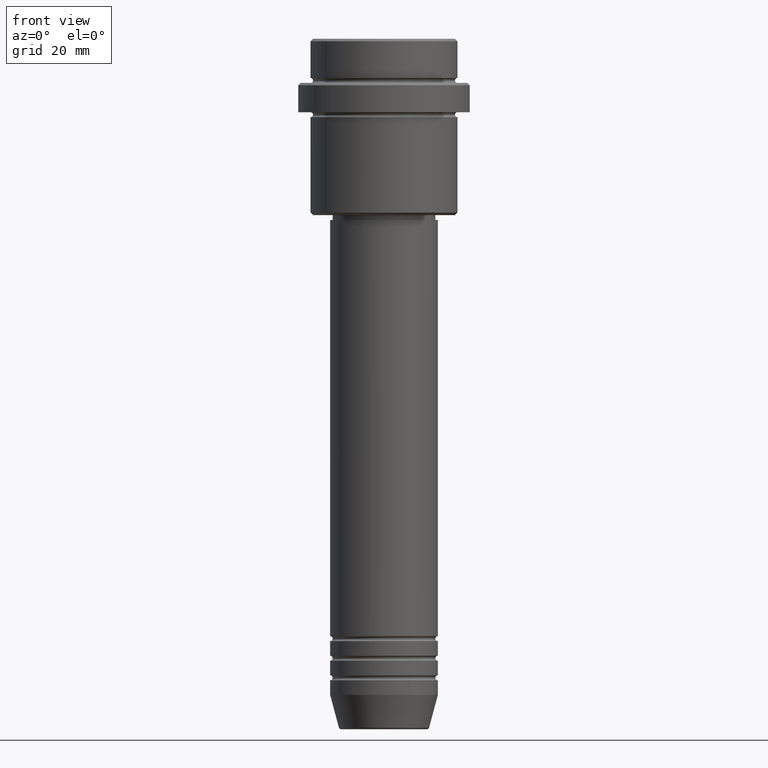
[diagram: clean part render]
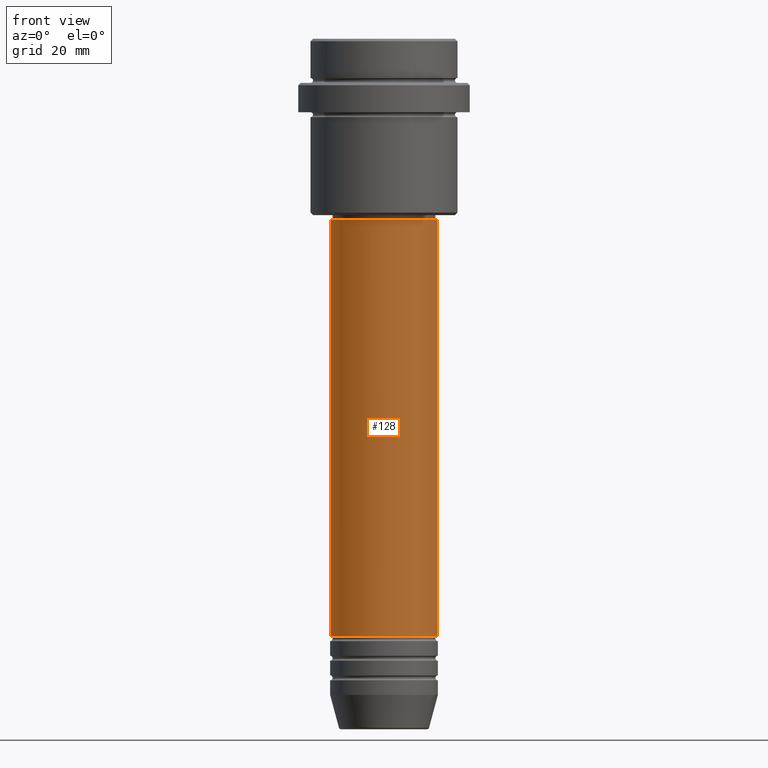
[diagram: same view with one face highlighted and labeled with its STEP entity id]
A machine part, front view. The second image highlights one B-rep face of the part: STEP entity #128.
In plain terms, the highlighted cylindrical surface (partial cylindrical patch) has radius 11 mm, axis along (-0, -0, 1).
Its self-contained STEP definition (entity closure, byte-faithful):
#8 = CARTESIAN_POINT ( 'NONE',  ( 10.99999999999999822, 0.000000000000000000, -36.99999999999999289 ) ) ;
#40 = ORIENTED_EDGE ( 'NONE', *, *, #512, .T. ) ;
#41 = VERTEX_POINT ( 'NONE', #8 ) ;
#98 = CARTESIAN_POINT ( 'NONE',  ( 11.00000000000000000, 0.000000000000000000, 0.000000000000000000 ) ) ;
#124 = CARTESIAN_POINT ( 'NONE',  ( 11.00000000000000000, 0.000000000000000000, -121.9999999999998721 ) ) ;
#128 = ADVANCED_FACE ( 'NONE', ( #699 ), #811, .T. ) ;
#146 = DIRECTION ( 'NONE',  ( -0.000000000000000000, -0.000000000000000000, 1.000000000000000000 ) ) ;
#164 = EDGE_CURVE ( 'NONE', #532, #735, #676, .T. ) ;
#204 = AXIS2_PLACEMENT_3D ( 'NONE', #255, #146, #240 ) ;
#240 = DIRECTION ( 'NONE',  ( 1.000000000000000000, 0.000000000000000000, 0.000000000000000000 ) ) ;
#255 = CARTESIAN_POINT ( 'NONE',  ( 0.000000000000000000, 0.000000000000000000, 0.000000000000000000 ) ) ;
#318 = DIRECTION ( 'NONE',  ( -0.000000000000000000, -0.000000000000000000, 1.000000000000000000 ) ) ;
#387 = AXIS2_PLACEMENT_3D ( 'NONE', #581, #1104, #1016 ) ;
#461 = AXIS2_PLACEMENT_3D ( 'NONE', #1213, #747, #1105 ) ;
#475 = EDGE_LOOP ( 'NONE', ( #653, #40, #720, #794 ) ) ;
#476 = VECTOR ( 'NONE', #318, 1000.000000000000000 ) ;
#512 = EDGE_CURVE ( 'NONE', #532, #513, #1194, .T. ) ;
#513 = VERTEX_POINT ( 'NONE', #124 ) ;
#530 = CARTESIAN_POINT ( 'NONE',  ( -11.00000000000000000, 1.347111479062088405E-15, -121.9999999999998721 ) ) ;
#532 = VERTEX_POINT ( 'NONE', #530 ) ;
#581 = CARTESIAN_POINT ( 'NONE',  ( 0.000000000000000000, 0.000000000000000000, -36.99999999999999289 ) ) ;
#653 = ORIENTED_EDGE ( 'NONE', *, *, #164, .F. ) ;
#676 = LINE ( 'NONE', #899, #1304 ) ;
#699 = FACE_OUTER_BOUND ( 'NONE', #475, .T. ) ;
#720 = ORIENTED_EDGE ( 'NONE', *, *, #817, .T. ) ;
#735 = VERTEX_POINT ( 'NONE', #1377 ) ;
#747 = DIRECTION ( 'NONE',  ( -0.000000000000000000, -0.000000000000000000, 1.000000000000000000 ) ) ;
#794 = ORIENTED_EDGE ( 'NONE', *, *, #1044, .F. ) ;
#811 = CYLINDRICAL_SURFACE ( 'NONE', #204, 11.00000000000000000 ) ;
#817 = EDGE_CURVE ( 'NONE', #513, #41, #864, .T. ) ;
#864 = LINE ( 'NONE', #98, #476 ) ;
#899 = CARTESIAN_POINT ( 'NONE',  ( -11.00000000000000000, 1.347111479062088405E-15, 0.000000000000000000 ) ) ;
#1016 = DIRECTION ( 'NONE',  ( 1.000000000000000000, 0.000000000000000000, 0.000000000000000000 ) ) ;
#1024 = DIRECTION ( 'NONE',  ( -0.000000000000000000, -0.000000000000000000, 1.000000000000000000 ) ) ;
#1044 = EDGE_CURVE ( 'NONE', #735, #41, #1143, .T. ) ;
#1104 = DIRECTION ( 'NONE',  ( -0.000000000000000000, -0.000000000000000000, 1.000000000000000000 ) ) ;
#1105 = DIRECTION ( 'NONE',  ( 1.000000000000000000, 0.000000000000000000, 0.000000000000000000 ) ) ;
#1143 = CIRCLE ( 'NONE', #387, 10.99999999999999822 ) ;
#1194 = CIRCLE ( 'NONE', #461, 11.00000000000000000 ) ;
#1213 = CARTESIAN_POINT ( 'NONE',  ( 0.000000000000000000, 0.000000000000000000, -121.9999999999998721 ) ) ;
#1304 = VECTOR ( 'NONE', #1024, 1000.000000000000000 ) ;
#1377 = CARTESIAN_POINT ( 'NONE',  ( -10.99999999999999822, 1.347111479062088207E-15, -36.99999999999999289 ) ) ;